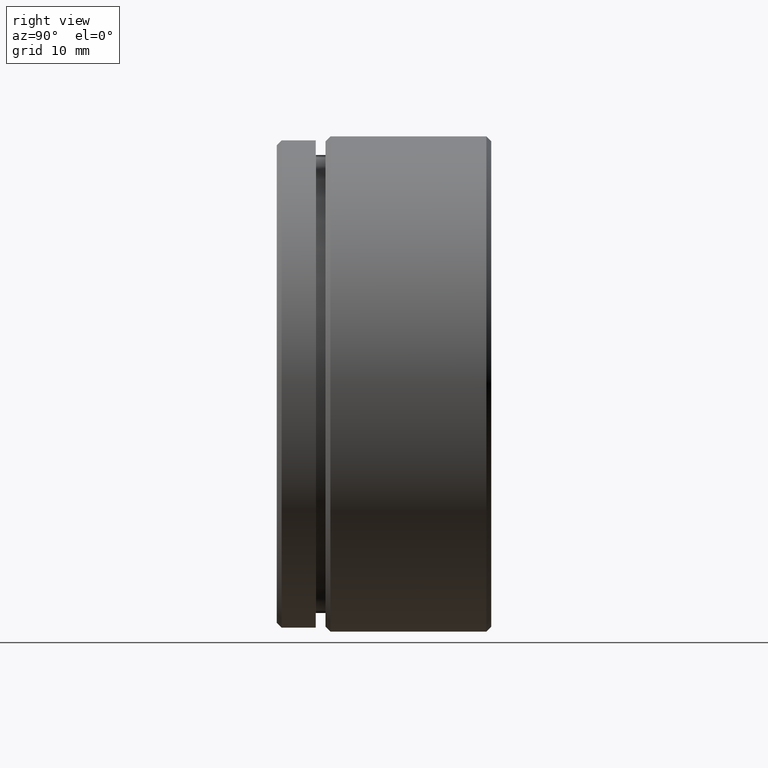
[diagram: clean part render]
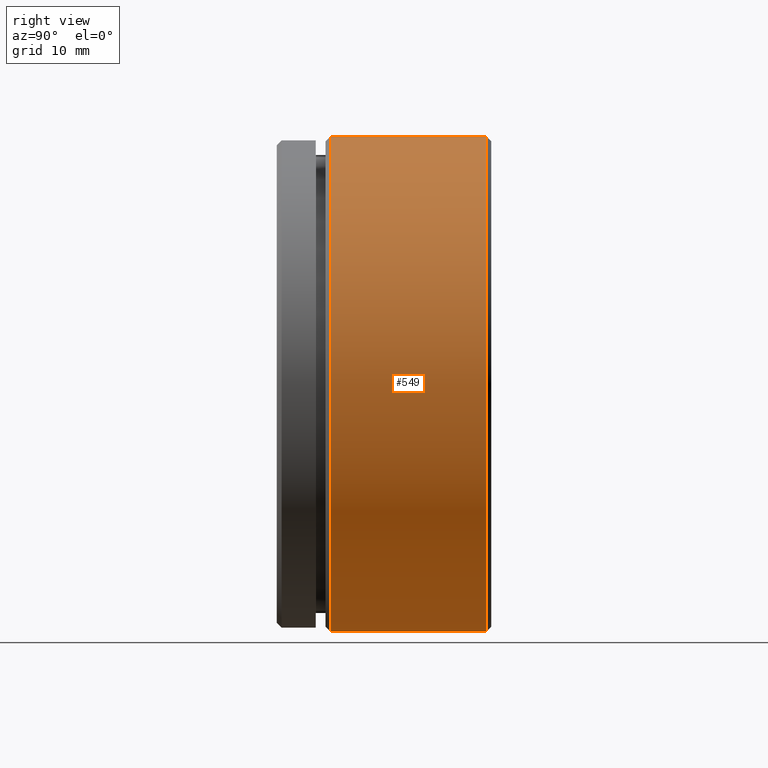
[diagram: same view with one face highlighted and labeled with its STEP entity id]
A machine part, right view. The second image highlights one B-rep face of the part: STEP entity #549.
In plain terms, the highlighted cylindrical surface (partial cylindrical patch) has radius 25.4 mm, axis along (-0, -1, -0).
Its self-contained STEP definition (entity closure, byte-faithful):
#10 = VERTEX_POINT ( 'NONE', #395 ) ;
#18 = DIRECTION ( 'NONE',  ( 0.0000000000000000000, 0.0000000000000000000, -1.000000000000000000 ) ) ;
#54 = ORIENTED_EDGE ( 'NONE', *, *, #1042, .T. ) ;
#59 = EDGE_CURVE ( 'NONE', #10, #70, #687, .T. ) ;
#60 = DIRECTION ( 'NONE',  ( -0.0000000000000000000, -1.000000000000000000, -0.0000000000000000000 ) ) ;
#70 = VERTEX_POINT ( 'NONE', #1029 ) ;
#94 = CARTESIAN_POINT ( 'NONE',  ( 3.110602869834276900E-015, 21.50000000000000000, 25.39999999999999900 ) ) ;
#106 = DIRECTION ( 'NONE',  ( -0.0000000000000000000, -1.000000000000000000, -0.0000000000000000000 ) ) ;
#215 = VECTOR ( 'NONE', #60, 1000.000000000000000 ) ;
#264 = DIRECTION ( 'NONE',  ( 0.0000000000000000000, 0.0000000000000000000, -1.000000000000000000 ) ) ;
#318 = CYLINDRICAL_SURFACE ( 'NONE', #1003, 25.39999999999999900 ) ;
#321 = CARTESIAN_POINT ( 'NONE',  ( 0.0000000000000000000, 5.499999999999999100, 0.0000000000000000000 ) ) ;
#345 = EDGE_CURVE ( 'NONE', #10, #972, #738, .T. ) ;
#364 = ORIENTED_EDGE ( 'NONE', *, *, #59, .F. ) ;
#395 = CARTESIAN_POINT ( 'NONE',  ( 0.0000000000000000000, 21.50000000000000000, -25.39999999999999900 ) ) ;
#434 = CARTESIAN_POINT ( 'NONE',  ( 0.0000000000000000000, 21.50000000000000000, 0.0000000000000000000 ) ) ;
#483 = AXIS2_PLACEMENT_3D ( 'NONE', #434, #1048, #264 ) ;
#487 = VECTOR ( 'NONE', #106, 1000.000000000000000 ) ;
#499 = LINE ( 'NONE', #872, #487 ) ;
#503 = AXIS2_PLACEMENT_3D ( 'NONE', #321, #801, #18 ) ;
#549 = ADVANCED_FACE ( 'NONE', ( #777 ), #318, .T. ) ;
#594 = VERTEX_POINT ( 'NONE', #662 ) ;
#633 = CIRCLE ( 'NONE', #503, 25.39999999999999900 ) ;
#662 = CARTESIAN_POINT ( 'NONE',  ( 0.0000000000000000000, 5.499999999999999100, 25.39999999999999900 ) ) ;
#687 = LINE ( 'NONE', #978, #215 ) ;
#738 = CIRCLE ( 'NONE', #483, 25.39999999999999900 ) ;
#757 = CARTESIAN_POINT ( 'NONE',  ( 0.0000000000000000000, 0.0000000000000000000, 0.0000000000000000000 ) ) ;
#777 = FACE_OUTER_BOUND ( 'NONE', #861, .T. ) ;
#801 = DIRECTION ( 'NONE',  ( -0.0000000000000000000, -1.000000000000000000, -0.0000000000000000000 ) ) ;
#861 = EDGE_LOOP ( 'NONE', ( #1047, #54, #1010, #364 ) ) ;
#872 = CARTESIAN_POINT ( 'NONE',  ( 3.110602869834276900E-015, 0.0000000000000000000, 25.39999999999999900 ) ) ;
#972 = VERTEX_POINT ( 'NONE', #94 ) ;
#978 = CARTESIAN_POINT ( 'NONE',  ( 0.0000000000000000000, 0.0000000000000000000, -25.39999999999999900 ) ) ;
#982 = EDGE_CURVE ( 'NONE', #70, #594, #633, .T. ) ;
#1003 = AXIS2_PLACEMENT_3D ( 'NONE', #757, #1007, #1033 ) ;
#1007 = DIRECTION ( 'NONE',  ( -0.0000000000000000000, -1.000000000000000000, -0.0000000000000000000 ) ) ;
#1010 = ORIENTED_EDGE ( 'NONE', *, *, #982, .F. ) ;
#1029 = CARTESIAN_POINT ( 'NONE',  ( 3.110602869834276900E-015, 5.499999999999999100, -25.39999999999999900 ) ) ;
#1033 = DIRECTION ( 'NONE',  ( 0.0000000000000000000, 0.0000000000000000000, -1.000000000000000000 ) ) ;
#1042 = EDGE_CURVE ( 'NONE', #972, #594, #499, .T. ) ;
#1047 = ORIENTED_EDGE ( 'NONE', *, *, #345, .T. ) ;
#1048 = DIRECTION ( 'NONE',  ( -0.0000000000000000000, -1.000000000000000000, -0.0000000000000000000 ) ) ;